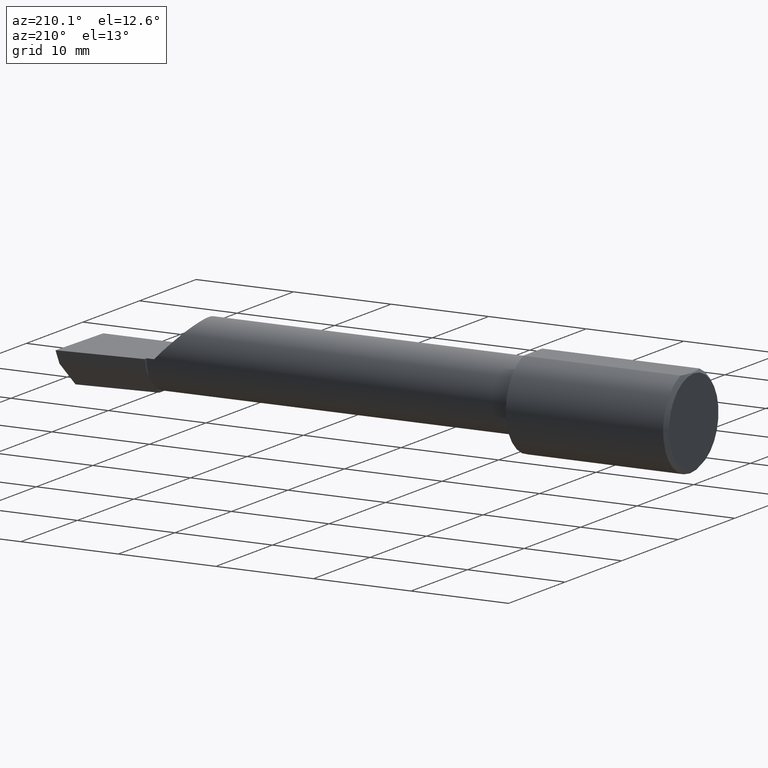
[diagram: clean part render]
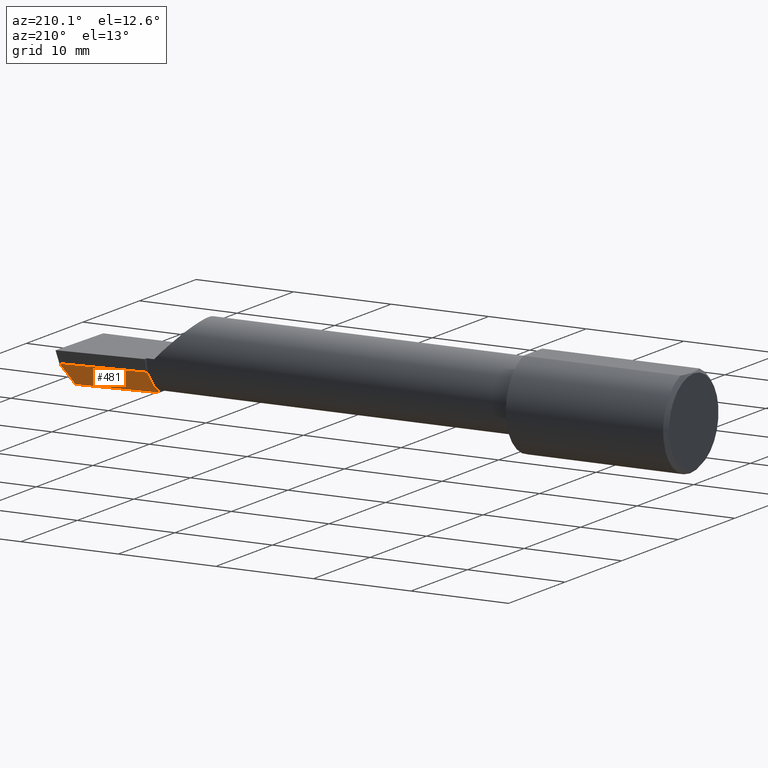
[diagram: same view with one face highlighted and labeled with its STEP entity id]
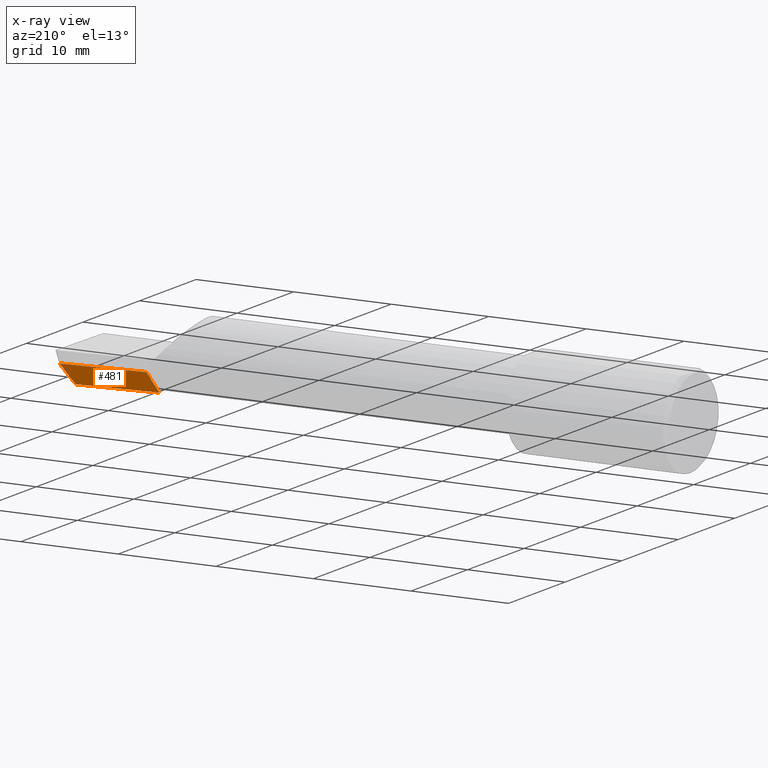
[diagram: x-ray of the same camera — body ghosted, the highlighted face saturated]
A machine part, auxiliary view. The second image highlights one B-rep face of the part: STEP entity #481.
The next image is the same camera in x-ray: the body ghosted, the highlighted face saturated — about 0% of this face is hidden behind the body in this view.
In plain terms, the highlighted planar face has unit normal (-0.0689, 0.716, -0.6947).
Its self-contained STEP definition (entity closure, byte-faithful):
#5 = ORIENTED_EDGE ( 'NONE', *, *, #449, .T. ) ;
#12 = CARTESIAN_POINT ( 'NONE',  ( 2.511419111345317923, 0.1163922996227946260, -0.04999999999999999584 ) ) ;
#26 = ORIENTED_EDGE ( 'NONE', *, *, #421, .F. ) ;
#30 = EDGE_LOOP ( 'NONE', ( #241, #5, #620, #609, #26, #290 ) ) ;
#35 = EDGE_CURVE ( 'NONE', #173, #625, #190, .T. ) ;
#60 = VECTOR ( 'NONE', #200, 39.37007874015748854 ) ;
#93 = FACE_OUTER_BOUND ( 'NONE', #30, .T. ) ;
#109 = LINE ( 'NONE', #345, #245 ) ;
#162 = DIRECTION ( 'NONE',  ( 0.1053106618240648301, 0.6976485211320200275, 0.7086580314005356263 ) ) ;
#173 = VERTEX_POINT ( 'NONE', #405 ) ;
#190 = LINE ( 'NONE', #331, #381 ) ;
#193 = PLANE ( 'NONE',  #530 ) ;
#194 = VERTEX_POINT ( 'NONE', #559 ) ;
#199 = VECTOR ( 'NONE', #498, 39.37007874015748854 ) ;
#200 = DIRECTION ( 'NONE',  ( -0.9953961983671800740, -0.09584575252021031166, 0.000000000000000000 ) ) ;
#238 = LINE ( 'NONE', #520, #592 ) ;
#241 = ORIENTED_EDGE ( 'NONE', *, *, #589, .F. ) ;
#245 = VECTOR ( 'NONE', #162, 39.37007874015748854 ) ;
#277 = LINE ( 'NONE', #431, #538 ) ;
#290 = ORIENTED_EDGE ( 'NONE', *, *, #497, .F. ) ;
#310 = VERTEX_POINT ( 'NONE', #518 ) ;
#331 = CARTESIAN_POINT ( 'NONE',  ( 2.160000000000000142, 0.06382066673065313334, -0.06931012851386068874 ) ) ;
#336 = DIRECTION ( 'NONE',  ( -0.06894566448119621160, 0.7160281025913034503, -0.6946583704589934793 ) ) ;
#345 = CARTESIAN_POINT ( 'NONE',  ( 2.493766568580444432, 0.1168246249203733073, -0.04780233936830601688 ) ) ;
#381 = VECTOR ( 'NONE', #527, 39.37007874015748854 ) ;
#391 = LINE ( 'NONE', #404, #199 ) ;
#404 = CARTESIAN_POINT ( 'NONE',  ( 2.160000000000000142, 0.06382066673065313334, -0.06931012851386068874 ) ) ;
#405 = CARTESIAN_POINT ( 'NONE',  ( 2.160000000000000142, 0.06495571228477933778, -0.06814016562413303946 ) ) ;
#421 = EDGE_CURVE ( 'NONE', #425, #173, #238, .T. ) ;
#425 = VERTEX_POINT ( 'NONE', #573 ) ;
#431 = CARTESIAN_POINT ( 'NONE',  ( 2.491859106488688358, 0.02714641170210413054, -0.1400500000000000633 ) ) ;
#449 = EDGE_CURVE ( 'NONE', #310, #194, #277, .T. ) ;
#481 = ADVANCED_FACE ( 'NONE', ( #93 ), #193, .T. ) ;
#487 = DIRECTION ( 'NONE',  ( 4.755568962650853567E-18, -0.6963153109074925462, -0.7177360153954946975 ) ) ;
#493 = CARTESIAN_POINT ( 'NONE',  ( 2.493439983562941720, 0.1146611065212079367, -0.04999999999999999584 ) ) ;
#497 = EDGE_CURVE ( 'NONE', #524, #425, #536, .T. ) ;
#498 = DIRECTION ( 'NONE',  ( 4.755568962650853567E-18, -0.6963153109074925462, -0.7177360153954946975 ) ) ;
#518 = CARTESIAN_POINT ( 'NONE',  ( 2.480058035321255350, 0.02601009779168074118, -0.1400500000000000911 ) ) ;
#520 = CARTESIAN_POINT ( 'NONE',  ( 2.160000000000000142, 0.06382066673065313334, -0.06931012851386068874 ) ) ;
#524 = VERTEX_POINT ( 'NONE', #493 ) ;
#527 = DIRECTION ( 'NONE',  ( 4.755568962650853567E-18, -0.6963153109074925462, -0.7177360153954946975 ) ) ;
#530 = AXIS2_PLACEMENT_3D ( 'NONE', #578, #336, #539 ) ;
#536 = LINE ( 'NONE', #12, #60 ) ;
#538 = VECTOR ( 'NONE', #576, 39.37007874015748854 ) ;
#539 = DIRECTION ( 'NONE',  ( 0.000000000000000000, 0.6963153109074925462, 0.7177360153954948085 ) ) ;
#559 = CARTESIAN_POINT ( 'NONE',  ( 2.160000000000000142, -0.004807985797372735411, -0.1400500000000000911 ) ) ;
#573 = CARTESIAN_POINT ( 'NONE',  ( 2.160000000000000142, 0.08255448787293399870, -0.05000000000000000278 ) ) ;
#576 = DIRECTION ( 'NONE',  ( -0.9953961983671800740, -0.09584575252021031166, -1.093478026937437817E-17 ) ) ;
#578 = CARTESIAN_POINT ( 'NONE',  ( 2.511419111345317923, 0.1163922996227946260, -0.04999999999999999584 ) ) ;
#580 = EDGE_CURVE ( 'NONE', #625, #194, #391, .T. ) ;
#589 = EDGE_CURVE ( 'NONE', #310, #524, #109, .T. ) ;
#592 = VECTOR ( 'NONE', #487, 39.37007874015748854 ) ;
#593 = CARTESIAN_POINT ( 'NONE',  ( 2.160000000000000142, 0.01441505128072310439, -0.1202356058309978909 ) ) ;
#609 = ORIENTED_EDGE ( 'NONE', *, *, #35, .F. ) ;
#620 = ORIENTED_EDGE ( 'NONE', *, *, #580, .F. ) ;
#625 = VERTEX_POINT ( 'NONE', #593 ) ;